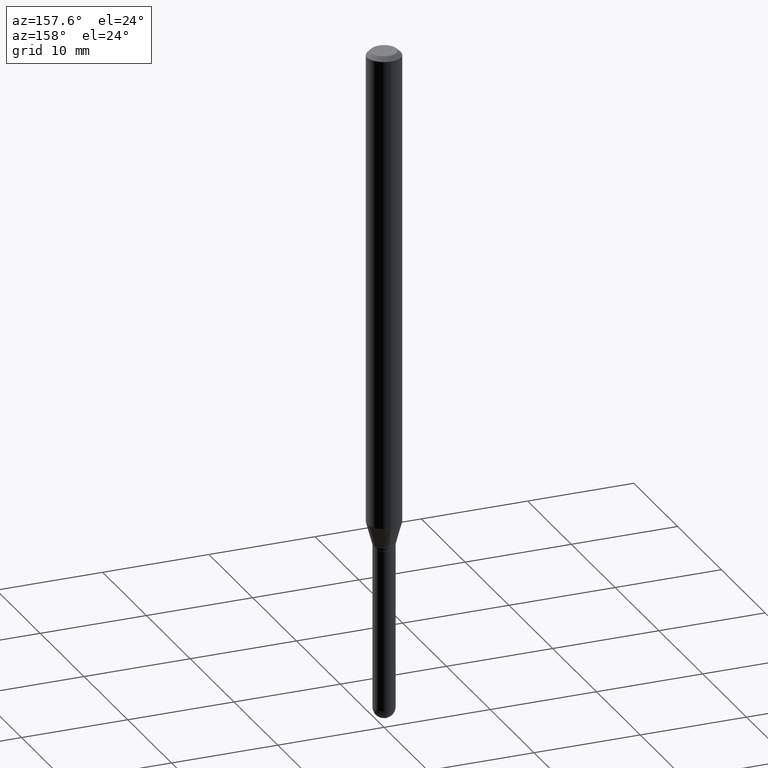
[diagram: clean part render]
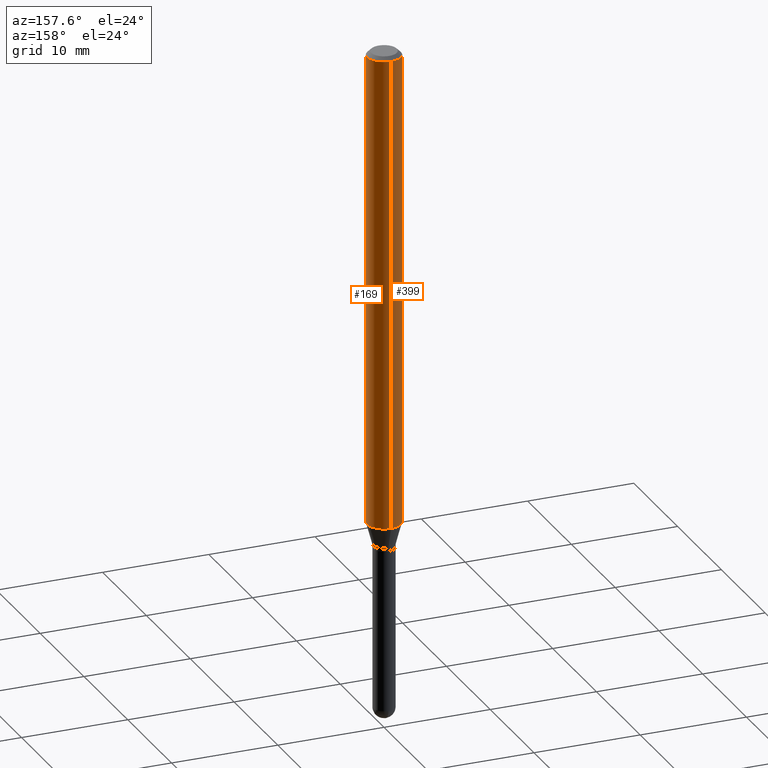
[diagram: same view with one multi-face feature highlighted, each face labeled with its STEP entity id]
A machine part, auxiliary view. The highlighted faces form ONE feature: a constant-radius fillet chain: 2 tangent blend faces with common blend radius 1.5875 mm. The faces share edges in the B-rep.
Their STEP definitions:
[1] entity #169 (Cylinder):
#86 = ORIENTED_EDGE ( 'NONE', *, *, #209, .T. ) ;
#120 = AXIS2_PLACEMENT_3D ( 'NONE', #189, #137, #439 ) ;
#137 = DIRECTION ( 'NONE',  ( -2.445473482975243677E-29, 3.491474641413525803E-15, 1.000000000000000000 ) ) ;
#143 = CARTESIAN_POINT ( 'NONE',  ( -4.364351673553912750E-16, -0.06250000000000005551, -0.01499999999999979128 ) ) ;
#148 = VERTEX_POINT ( 'NONE', #320 ) ;
#158 = VECTOR ( 'NONE', #391, 39.37007874015748143 ) ;
#169 = ADVANCED_FACE ( 'NONE', ( #331 ), #494, .T. ) ;
#189 = CARTESIAN_POINT ( 'NONE',  ( 4.318776739546118311E-29, -6.166044969625421427E-15, -1.766028856829701565 ) ) ;
#197 = DIRECTION ( 'NONE',  ( -2.445473482975243677E-29, 3.491474641413525803E-15, 1.000000000000000000 ) ) ;
#204 = CIRCLE ( 'NONE', #284, 0.06250000000000000000 ) ;
#209 = EDGE_CURVE ( 'NONE', #148, #423, #285, .T. ) ;
#242 = AXIS2_PLACEMENT_3D ( 'NONE', #369, #452, #492 ) ;
#248 = CIRCLE ( 'NONE', #120, 0.06250000000000000000 ) ;
#251 = CARTESIAN_POINT ( 'NONE',  ( 4.440892098501060035E-16, 0.06249999999999995143, -0.01500000000000022669 ) ) ;
#254 = VECTOR ( 'NONE', #197, 39.37007874015748143 ) ;
#268 = ORIENTED_EDGE ( 'NONE', *, *, #438, .F. ) ;
#274 = ORIENTED_EDGE ( 'NONE', *, *, #396, .T. ) ;
#281 = VERTEX_POINT ( 'NONE', #499 ) ;
#284 = AXIS2_PLACEMENT_3D ( 'NONE', #489, #459, #414 ) ;
#285 = LINE ( 'NONE', #303, #158 ) ;
#303 = CARTESIAN_POINT ( 'NONE',  ( 4.440892098500625669E-16, 0.06250000000000000000, -2.182171650883453627E-16 ) ) ;
#320 = CARTESIAN_POINT ( 'NONE',  ( 4.440892098501060035E-16, 0.06249999999999387296, -1.766028856829701787 ) ) ;
#331 = FACE_OUTER_BOUND ( 'NONE', #349, .T. ) ;
#346 = EDGE_CURVE ( 'NONE', #281, #451, #479, .T. ) ;
#349 = EDGE_LOOP ( 'NONE', ( #274, #86, #268, #392 ) ) ;
#369 = CARTESIAN_POINT ( 'NONE',  ( 0.000000000000000000, 0.000000000000000000, 0.000000000000000000 ) ) ;
#387 = CARTESIAN_POINT ( 'NONE',  ( -4.364351673553916201E-16, -0.06250000000000000000, 2.182171650883453627E-16 ) ) ;
#391 = DIRECTION ( 'NONE',  ( -2.445473482975243677E-29, 3.491474641413525803E-15, 1.000000000000000000 ) ) ;
#392 = ORIENTED_EDGE ( 'NONE', *, *, #346, .F. ) ;
#396 = EDGE_CURVE ( 'NONE', #281, #148, #248, .T. ) ;
#414 = DIRECTION ( 'NONE',  ( -6.982962677686265922E-15, -1.000000000000000000, 3.483106191921935554E-15 ) ) ;
#423 = VERTEX_POINT ( 'NONE', #251 ) ;
#438 = EDGE_CURVE ( 'NONE', #451, #423, #204, .T. ) ;
#439 = DIRECTION ( 'NONE',  ( -6.982962677686265922E-15, -1.000000000000000000, 4.370956789862821150E-15 ) ) ;
#451 = VERTEX_POINT ( 'NONE', #143 ) ;
#452 = DIRECTION ( 'NONE',  ( -2.445473482975243677E-29, 3.491474641413525803E-15, 1.000000000000000000 ) ) ;
#459 = DIRECTION ( 'NONE',  ( -2.445473482975243677E-29, 3.491474641413525803E-15, 1.000000000000000000 ) ) ;
#479 = LINE ( 'NONE', #387, #254 ) ;
#489 = CARTESIAN_POINT ( 'NONE',  ( 3.668210224462867880E-31, -5.237211962120292304E-17, -0.01500000000000000812 ) ) ;
#492 = DIRECTION ( 'NONE',  ( -6.982962677686265922E-15, -1.000000000000000000, 3.491474641413525803E-15 ) ) ;
#494 = CYLINDRICAL_SURFACE ( 'NONE', #242, 0.06250000000000000000 ) ;
#499 = CARTESIAN_POINT ( 'NONE',  ( -4.364351673553481341E-16, -0.06250000000000613398, -1.766028856829701343 ) ) ;
[2] entity #399 (Cylinder):
#3 = DIRECTION ( 'NONE',  ( -6.982962677686265922E-15, -1.000000000000000000, 3.491474641413525803E-15 ) ) ;
#20 = EDGE_CURVE ( 'NONE', #423, #451, #56, .T. ) ;
#56 = CIRCLE ( 'NONE', #454, 0.06250000000000000000 ) ;
#97 = FACE_OUTER_BOUND ( 'NONE', #238, .T. ) ;
#99 = CARTESIAN_POINT ( 'NONE',  ( 4.318776739546118311E-29, -6.166044969625421427E-15, -1.766028856829701565 ) ) ;
#112 = AXIS2_PLACEMENT_3D ( 'NONE', #99, #249, #188 ) ;
#114 = ORIENTED_EDGE ( 'NONE', *, *, #209, .F. ) ;
#143 = CARTESIAN_POINT ( 'NONE',  ( -4.364351673553912750E-16, -0.06250000000000005551, -0.01499999999999979128 ) ) ;
#148 = VERTEX_POINT ( 'NONE', #320 ) ;
#156 = ORIENTED_EDGE ( 'NONE', *, *, #458, .T. ) ;
#158 = VECTOR ( 'NONE', #391, 39.37007874015748143 ) ;
#159 = AXIS2_PLACEMENT_3D ( 'NONE', #166, #393, #3 ) ;
#166 = CARTESIAN_POINT ( 'NONE',  ( 0.000000000000000000, 0.000000000000000000, 0.000000000000000000 ) ) ;
#186 = DIRECTION ( 'NONE',  ( -2.445473482975243677E-29, 3.491474641413525803E-15, 1.000000000000000000 ) ) ;
#188 = DIRECTION ( 'NONE',  ( -6.982962677686265922E-15, -1.000000000000000000, 4.370956789862821150E-15 ) ) ;
#197 = DIRECTION ( 'NONE',  ( -2.445473482975243677E-29, 3.491474641413525803E-15, 1.000000000000000000 ) ) ;
#209 = EDGE_CURVE ( 'NONE', #148, #423, #285, .T. ) ;
#217 = DIRECTION ( 'NONE',  ( -6.982962677686265922E-15, -1.000000000000000000, 3.483106191921935554E-15 ) ) ;
#238 = EDGE_LOOP ( 'NONE', ( #114, #156, #470, #289 ) ) ;
#249 = DIRECTION ( 'NONE',  ( -2.445473482975243677E-29, 3.491474641413525803E-15, 1.000000000000000000 ) ) ;
#251 = CARTESIAN_POINT ( 'NONE',  ( 4.440892098501060035E-16, 0.06249999999999995143, -0.01500000000000022669 ) ) ;
#254 = VECTOR ( 'NONE', #197, 39.37007874015748143 ) ;
#281 = VERTEX_POINT ( 'NONE', #499 ) ;
#285 = LINE ( 'NONE', #303, #158 ) ;
#289 = ORIENTED_EDGE ( 'NONE', *, *, #20, .F. ) ;
#303 = CARTESIAN_POINT ( 'NONE',  ( 4.440892098500625669E-16, 0.06250000000000000000, -2.182171650883453627E-16 ) ) ;
#313 = CYLINDRICAL_SURFACE ( 'NONE', #159, 0.06250000000000000000 ) ;
#320 = CARTESIAN_POINT ( 'NONE',  ( 4.440892098501060035E-16, 0.06249999999999387296, -1.766028856829701787 ) ) ;
#346 = EDGE_CURVE ( 'NONE', #281, #451, #479, .T. ) ;
#373 = CARTESIAN_POINT ( 'NONE',  ( 3.668210224462867880E-31, -5.237211962120292304E-17, -0.01500000000000000812 ) ) ;
#387 = CARTESIAN_POINT ( 'NONE',  ( -4.364351673553916201E-16, -0.06250000000000000000, 2.182171650883453627E-16 ) ) ;
#391 = DIRECTION ( 'NONE',  ( -2.445473482975243677E-29, 3.491474641413525803E-15, 1.000000000000000000 ) ) ;
#393 = DIRECTION ( 'NONE',  ( -2.445473482975243677E-29, 3.491474641413525803E-15, 1.000000000000000000 ) ) ;
#399 = ADVANCED_FACE ( 'NONE', ( #97 ), #313, .T. ) ;
#423 = VERTEX_POINT ( 'NONE', #251 ) ;
#451 = VERTEX_POINT ( 'NONE', #143 ) ;
#454 = AXIS2_PLACEMENT_3D ( 'NONE', #373, #186, #217 ) ;
#455 = CIRCLE ( 'NONE', #112, 0.06250000000000000000 ) ;
#458 = EDGE_CURVE ( 'NONE', #148, #281, #455, .T. ) ;
#470 = ORIENTED_EDGE ( 'NONE', *, *, #346, .T. ) ;
#479 = LINE ( 'NONE', #387, #254 ) ;
#499 = CARTESIAN_POINT ( 'NONE',  ( -4.364351673553481341E-16, -0.06250000000000613398, -1.766028856829701343 ) ) ;